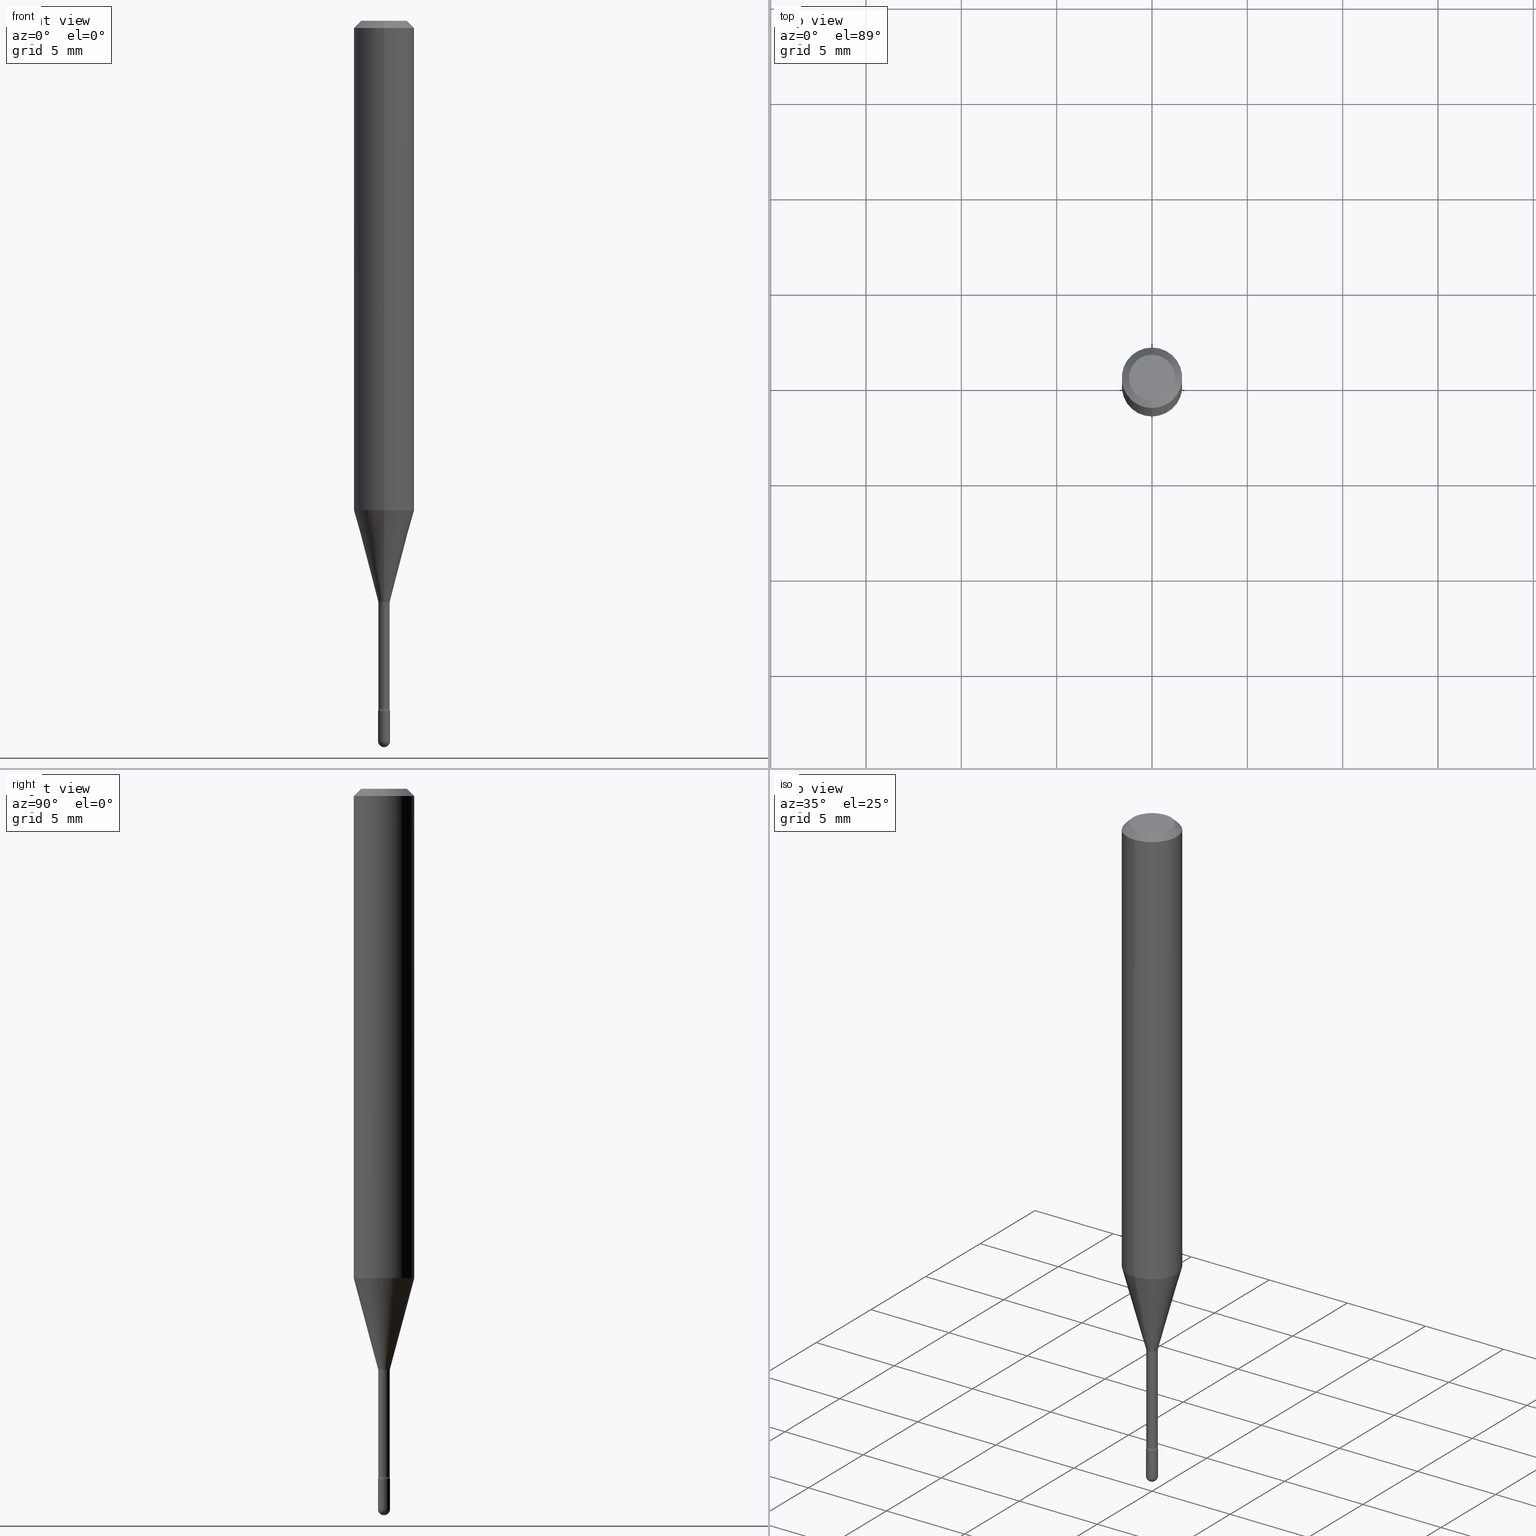
[diagram: canonical four-view strip — front | top / right | iso, engineering-drawing reading convention]
A machine part, canonical four-view strip (front | top / right | iso — engineering-drawing reading convention). The complete STEP part file that produces these views, byte-faithful:
ISO-10303-21;
HEADER;
FILE_DESCRIPTION (( 'STEP AP203' ),
    '1' );
FILE_NAME ('09304.STEP',
    '2024-04-09T22:18:19',
    ( '' ),
    ( '' ),
    'SwSTEP 2.0',
    'SolidWorks 2023',
    '' );
FILE_SCHEMA (( 'CONFIG_CONTROL_DESIGN' ));
ENDSEC;

DATA;
#1 = MECHANICAL_CONTEXT ( 'NONE', #393, 'mechanical' ) ;
#2 =( LENGTH_UNIT ( ) NAMED_UNIT ( * ) SI_UNIT ( $, .METRE. ) );
#3 = CONICAL_SURFACE ( 'NONE', #303, 0.06250000000000000000, 0.7853981633974483900 ) ;
#4 = CARTESIAN_POINT ( 'NONE',  ( 2.939391848563758953E-29, -4.196672540189851950E-15, -1.201974787463810923 ) ) ;
#5 = TOROIDAL_SURFACE ( 'NONE', #379, 0.02674999999999999947, 0.01499999999999998904 ) ;
#6 = CARTESIAN_POINT ( 'NONE',  ( 3.473339087963991292E-29, -4.959007687372092628E-15, -1.420316251501201332 ) ) ;
#7 = COORDINATED_UNIVERSAL_TIME_OFFSET ( 5, 0, .BEHIND. ) ;
#8 = CARTESIAN_POINT ( 'NONE',  ( -8.561889171223086706E-17, -0.01226111260566816255, -1.198092501787273223 ) ) ;
#9 = EDGE_LOOP ( 'NONE', ( #147, #99, #421, #566 ) ) ;
#10 = LINE ( 'NONE', #331, #33 ) ;
#11 = EDGE_CURVE ( 'NONE', #504, #551, #356, .T. ) ;
#12 = DIRECTION ( 'NONE',  ( 1.839019923739597949E-15, 0.2588190451025246253, 0.9659258262890670910 ) ) ;
#13 = DATE_AND_TIME ( #312, #174 ) ;
#14 = AXIS2_PLACEMENT_3D ( 'NONE', #158, #167, #76 ) ;
#15 = APPROVAL_DATE_TIME ( #462, #544 ) ;
#16 = DIRECTION ( 'NONE',  ( -2.445344965363112151E-29, 3.491658685948866610E-15, 1.000000000000000000 ) ) ;
#17 = VERTEX_POINT ( 'NONE', #369 ) ;
#18 = EDGE_LOOP ( 'NONE', ( #511, #547 ) ) ;
#19 = CC_DESIGN_PERSON_AND_ORGANIZATION_ASSIGNMENT ( #345, #270, ( #185 ) ) ;
#20 = DIRECTION ( 'NONE',  ( 1.000000000000000000, -7.105427357601001070E-15, 4.926317680417736318E-29 ) ) ;
#21 = CARTESIAN_POINT ( 'NONE',  ( 1.900701818158617031E-16, 0.02674999999999506939, -1.420316251501201332 ) ) ;
#22 = CARTESIAN_POINT ( 'NONE',  ( 4.440892098500871695E-16, 0.06249999999999647504, -1.010598421515880085 ) ) ;
#23 = ORIENTED_EDGE ( 'NONE', *, *, #415, .F. ) ;
#24 = CIRCLE ( 'NONE', #107, 0.04749999999999999362 ) ;
#25 = CONICAL_SURFACE ( 'NONE', #490, 0.01226111260566397840, 0.2617993877991499629 ) ;
#26 = ORIENTED_EDGE ( 'NONE', *, *, #438, .T. ) ;
#27 = DIRECTION ( 'NONE',  ( -6.982962677686265922E-15, -1.000000000000000000, 0.000000000000000000 ) ) ;
#28 = DIRECTION ( 'NONE',  ( -1.000000000000000000, 6.982962677686265922E-15, -4.883557194083112901E-29 ) ) ;
#29 = APPROVAL ( #458, 'UNSPECIFIED' ) ;
#30 = VERTEX_POINT ( 'NONE', #290 ) ;
#31 = CARTESIAN_POINT ( 'NONE',  ( -1.169113584055446105E-44, 1.669184350826100908E-30, 4.780733988912460139E-16 ) ) ;
#32 = DIRECTION ( 'NONE',  ( -6.982962677686265922E-15, -1.000000000000000000, 3.491658685948865033E-15 ) ) ;
#33 = VECTOR ( 'NONE', #276, 39.37007874015748143 ) ;
#34 = CARTESIAN_POINT ( 'NONE',  ( 3.637634849200390463E-29, -5.193578491529179010E-15, -1.487499999999999822 ) ) ;
#35 = CIRCLE ( 'NONE', #450, 0.01250000000000000069 ) ;
#36 = EDGE_CURVE ( 'NONE', #297, #51, #426, .T. ) ;
#37 = DIRECTION ( 'NONE',  ( -2.445468806185136597E-29, 3.491481338843145583E-15, 1.000000000000000000 ) ) ;
#38 = CARTESIAN_POINT ( 'NONE',  ( 3.668017448044687809E-31, -5.237488028923329079E-17, -0.01500000000000008271 ) ) ;
#39 = DIRECTION ( 'NONE',  ( -2.445344965363111590E-29, 3.491658685948866610E-15, 1.000000000000000000 ) ) ;
#40 = EDGE_CURVE ( 'NONE', #488, #302, #493, .T. ) ;
#41 = AXIS2_PLACEMENT_3D ( 'NONE', #113, #323, #53 ) ;
#42 = AXIS2_PLACEMENT_3D ( 'NONE', #170, #440, #344 ) ;
#43 = CARTESIAN_POINT ( 'NONE',  ( -1.169113584055446105E-44, 1.669184350826100908E-30, 4.780733988912460139E-16 ) ) ;
#44 = DIRECTION ( 'NONE',  ( -6.982962677686265922E-15, -1.000000000000000000, 3.491658685948866610E-15 ) ) ;
#45 = CIRCLE ( 'NONE', #143, 0.06250000000000000000 ) ;
#46 = ADVANCED_FACE ( 'NONE', ( #539 ), #67, .T. ) ;
#47 = AXIS2_PLACEMENT_3D ( 'NONE', #274, #39, #44 ) ;
#48 = CARTESIAN_POINT ( 'NONE',  ( -0.01250000000000000243, -4.995651857720318490E-15, -1.487499999999999822 ) ) ;
#49 = DIRECTION ( 'NONE',  ( -6.982962677686265922E-15, -1.000000000000000000, 4.370956789862821150E-15 ) ) ;
#50 = DIRECTION ( 'NONE',  ( -2.445344965363112151E-29, 3.491658685948866610E-15, 1.000000000000000000 ) ) ;
#51 = VERTEX_POINT ( 'NONE', #429 ) ;
#52 = PERSON_AND_ORGANIZATION_ROLE ( 'creator' ) ;
#53 = DIRECTION ( 'NONE',  ( 6.982962677686265922E-15, 1.000000000000000000, -3.491658685948866610E-15 ) ) ;
#54 = EDGE_CURVE ( 'NONE', #214, #325, #253, .T. ) ;
#55 = CARTESIAN_POINT ( 'NONE',  ( 2.471261762057765051E-29, -3.528664756492135889E-15, -1.010598421515879863 ) ) ;
#56 = DIRECTION ( 'NONE',  ( -2.445344965363112151E-29, 3.491658685948866610E-15, 1.000000000000000000 ) ) ;
#57 = AXIS2_PLACEMENT_3D ( 'NONE', #102, #286, #374 ) ;
#58 = AXIS2_PLACEMENT_3D ( 'NONE', #21, #293, #437 ) ;
#59 = CARTESIAN_POINT ( 'NONE',  ( 3.637634849200391024E-29, -5.193578491529179010E-15, -1.487500000000000266 ) ) ;
#60 = ORIENTED_EDGE ( 'NONE', *, *, #435, .F. ) ;
#61 = ORIENTED_EDGE ( 'NONE', *, *, #390, .T. ) ;
#62 = FACE_OUTER_BOUND ( 'NONE', #208, .T. ) ;
#63 = DIRECTION ( 'NONE',  ( -2.445468806185136877E-29, 3.491481338843145188E-15, 1.000000000000000000 ) ) ;
#64 = EDGE_CURVE ( 'NONE', #74, #214, #231, .T. ) ;
#65 = CARTESIAN_POINT ( 'NONE',  ( 2.929749467284803719E-29, -4.183330090435740004E-15, -1.198092501787273223 ) ) ;
#66 = ORIENTED_EDGE ( 'NONE', *, *, #359, .T. ) ;
#67 = CYLINDRICAL_SURFACE ( 'NONE', #448, 0.06250000000000000000 ) ;
#68 = EDGE_CURVE ( 'NONE', #74, #551, #420, .T. ) ;
#69 = CARTESIAN_POINT ( 'NONE',  ( -1.867942516280730992E-16, -0.02675000000000498854, -1.420316251501201332 ) ) ;
#70 = ORIENTED_EDGE ( 'NONE', *, *, #68, .T. ) ;
#71 = AXIS2_PLACEMENT_3D ( 'NONE', #352, #478, #73 ) ;
#72 = ORIENTED_EDGE ( 'NONE', *, *, #11, .F. ) ;
#73 = DIRECTION ( 'NONE',  ( -6.982962677686265922E-15, -1.000000000000000000, 0.000000000000000000 ) ) ;
#74 = VERTEX_POINT ( 'NONE', #166 ) ;
#75 = DIRECTION ( 'NONE',  ( 2.445344965363112151E-29, -3.491658685948866610E-15, -1.000000000000000000 ) ) ;
#76 = DIRECTION ( 'NONE',  ( -6.982962677686265922E-15, -1.000000000000000000, 0.000000000000000000 ) ) ;
#77 = PLANE ( 'NONE',  #346 ) ;
#78 = AXIS2_PLACEMENT_3D ( 'NONE', #151, #245, #422 ) ;
#79 = LOCAL_TIME ( 18, 18, 19.00000000000000000, #495 ) ;
#80 = CC_DESIGN_PERSON_AND_ORGANIZATION_ASSIGNMENT ( #322, #112, ( #203 ) ) ;
#81 = CARTESIAN_POINT ( 'NONE',  ( -4.364351673553912750E-16, -0.06250000000000005551, -0.01499999999999986587 ) ) ;
#82 = LINE ( 'NONE', #304, #378 ) ;
#83 = DIRECTION ( 'NONE',  ( 1.000000000000000000, -6.982962677686265922E-15, 4.876176775795935793E-29 ) ) ;
#84 = CARTESIAN_POINT ( 'NONE',  ( 0.01250000000000000243, -8.728703347107835853E-17, 6.095220969744921493E-31 ) ) ;
#85 = PLANE ( 'NONE',  #47 ) ;
#86 = DIRECTION ( 'NONE',  ( 1.000000000000000000, -6.982962677686292743E-15, 0.000000000000000000 ) ) ;
#87 = ORIENTED_EDGE ( 'NONE', *, *, #560, .T. ) ;
#88 = AXIS2_PLACEMENT_3D ( 'NONE', #461, #470, #248 ) ;
#89 = AXIS2_PLACEMENT_3D ( 'NONE', #59, #363, #240 ) ;
#90 = VECTOR ( 'NONE', #227, 39.37007874015748143 ) ;
#91 = ORIENTED_EDGE ( 'NONE', *, *, #362, .F. ) ;
#92 = CARTESIAN_POINT ( 'NONE',  ( 2.929749467284803719E-29, -4.183330090435740004E-15, -1.198092501787273223 ) ) ;
#93 = EDGE_CURVE ( 'NONE', #257, #424, #24, .T. ) ;
#94 =( CONVERSION_BASED_UNIT ( 'INCH', #492 ) LENGTH_UNIT ( ) NAMED_UNIT ( #514 ) );
#95 = CIRCLE ( 'NONE', #57, 0.01250000000000000069 ) ;
#96 = DIRECTION ( 'NONE',  ( -2.445468806185136597E-29, 3.491481338843145583E-15, 1.000000000000000000 ) ) ;
#97 = SHAPE_DEFINITION_REPRESENTATION ( #549, #558 ) ;
#98 = DIRECTION ( 'NONE',  ( -2.445344965363112151E-29, 3.491658685948866610E-15, 1.000000000000000000 ) ) ;
#99 = ORIENTED_EDGE ( 'NONE', *, *, #124, .F. ) ;
#100 = CARTESIAN_POINT ( 'NONE',  ( 4.364351673553919652E-16, 0.06249999999999995143, -0.01500000000000030129 ) ) ;
#101 = UNCERTAINTY_MEASURE_WITH_UNIT (LENGTH_MEASURE( 1.000000000000000082E-05 ), #94, 'distance_accuracy_value', 'NONE');
#102 = CARTESIAN_POINT ( 'NONE',  ( 3.484793048813820547E-29, -4.975360907851483175E-15, -1.425000000000000266 ) ) ;
#103 = CARTESIAN_POINT ( 'NONE',  ( -8.204981146277892841E-17, -0.01175000000000496307, -1.420316251501201332 ) ) ;
#104 = VERTEX_POINT ( 'NONE', #499 ) ;
#105 = DIRECTION ( 'NONE',  ( 1.000000000000000000, -6.982962677686265922E-15, 4.883557194083112340E-29 ) ) ;
#106 = APPROVAL_ROLE ( '' ) ;
#107 = AXIS2_PLACEMENT_3D ( 'NONE', #328, #56, #466 ) ;
#108 = AXIS2_PLACEMENT_3D ( 'NONE', #234, #404, #486 ) ;
#109 = ORIENTED_EDGE ( 'NONE', *, *, #359, .F. ) ;
#110 = EDGE_CURVE ( 'NONE', #51, #30, #95, .T. ) ;
#111 = DIRECTION ( 'NONE',  ( -6.982962677686265922E-15, -1.000000000000000000, 3.491658685948867005E-15 ) ) ;
#112 = PERSON_AND_ORGANIZATION_ROLE ( 'classification_officer' ) ;
#113 = CARTESIAN_POINT ( 'NONE',  ( 3.316907271900976096E-16, 0.04749999999999999362, 3.181360782104003877E-17 ) ) ;
#114 = LINE ( 'NONE', #8, #365 ) ;
#115 = VERTEX_POINT ( 'NONE', #503 ) ;
#116 = ORIENTED_EDGE ( 'NONE', *, *, #180, .T. ) ;
#117 = DIRECTION ( 'NONE',  ( -2.445344965363112151E-29, 3.491658685948866610E-15, 1.000000000000000000 ) ) ;
#118 = ORIENTED_EDGE ( 'NONE', *, *, #93, .F. ) ;
#119 = ORIENTED_EDGE ( 'NONE', *, *, #224, .T. ) ;
#120 = ORIENTED_EDGE ( 'NONE', *, *, #40, .F. ) ;
#121 = ADVANCED_FACE ( 'NONE', ( #155 ), #557, .F. ) ;
#122 = AXIS2_PLACEMENT_3D ( 'NONE', #368, #117, #206 ) ;
#123 = AXIS2_PLACEMENT_3D ( 'NONE', #34, #519, #387 ) ;
#124 = EDGE_CURVE ( 'NONE', #311, #104, #135, .T. ) ;
#125 = DIRECTION ( 'NONE',  ( -1.000000000000000000, 6.982962677686266711E-15, -4.883557194083112901E-29 ) ) ;
#126 = ORIENTED_EDGE ( 'NONE', *, *, #54, .T. ) ;
#127 = AXIS2_PLACEMENT_3D ( 'NONE', #237, #105, #209 ) ;
#128 = ADVANCED_FACE ( 'NONE', ( #473 ), #202, .T. ) ;
#129 =( NAMED_UNIT ( * ) PLANE_ANGLE_UNIT ( ) SI_UNIT ( $, .RADIAN. ) );
#130 = DIRECTION ( 'NONE',  ( 6.982962677686265922E-15, 1.000000000000000000, -3.483106191921935554E-15 ) ) ;
#131 = CC_DESIGN_PERSON_AND_ORGANIZATION_ASSIGNMENT ( #238, #144, ( #479 ) ) ;
#132 = COORDINATED_UNIVERSAL_TIME_OFFSET ( 5, 0, .BEHIND. ) ;
#133 = CARTESIAN_POINT ( 'NONE',  ( -8.728703347104359935E-17, -0.01250000000000499323, -1.425000000000000266 ) ) ;
#134 = ORIENTED_EDGE ( 'NONE', *, *, #142, .F. ) ;
#135 = CIRCLE ( 'NONE', #157, 0.01175000000000000350 ) ;
#136 = AXIS2_PLACEMENT_3D ( 'NONE', #172, #154, #413 ) ;
#137 = LINE ( 'NONE', #351, #90 ) ;
#138 = ADVANCED_FACE ( 'NONE', ( #62 ), #515, .T. ) ;
#139 = DIRECTION ( 'NONE',  ( -6.982962677686265922E-15, -1.000000000000000000, 0.000000000000000000 ) ) ;
#140 = ORIENTED_EDGE ( 'NONE', *, *, #193, .T. ) ;
#141 = DIRECTION ( 'NONE',  ( 1.000000000000000000, -6.982962677686267499E-15, 4.876176775795936353E-29 ) ) ;
#142 = EDGE_CURVE ( 'NONE', #164, #30, #264, .T. ) ;
#143 = AXIS2_PLACEMENT_3D ( 'NONE', #250, #388, #561 ) ;
#144 = PERSON_AND_ORGANIZATION_ROLE ( 'creator' ) ;
#145 = PRODUCT_DEFINITION_FORMATION_WITH_SPECIFIED_SOURCE ( 'ANY', '', #185, .NOT_KNOWN. ) ;
#146 = FACE_OUTER_BOUND ( 'NONE', #188, .T. ) ;
#147 = ORIENTED_EDGE ( 'NONE', *, *, #392, .F. ) ;
#148 = CARTESIAN_POINT ( 'NONE',  ( 2.929749467284803719E-29, -4.183330090435740004E-15, -1.198092501787273223 ) ) ;
#149 = EDGE_CURVE ( 'NONE', #424, #257, #212, .T. ) ;
#150 = EDGE_LOOP ( 'NONE', ( #530, #118, #518, #552 ) ) ;
#151 = CARTESIAN_POINT ( 'NONE',  ( -1.867942516280782268E-16, -0.02675000000000419403, -1.201974787463810701 ) ) ;
#152 = EDGE_LOOP ( 'NONE', ( #336, #161 ) ) ;
#153 = DIRECTION ( 'NONE',  ( -6.982962677686266711E-15, -1.000000000000000000, 3.491658685948866610E-15 ) ) ;
#154 = DIRECTION ( 'NONE',  ( -2.445468806185136597E-29, 3.491481338843145583E-15, 1.000000000000000000 ) ) ;
#155 = FACE_OUTER_BOUND ( 'NONE', #474, .T. ) ;
#156 = PERSON_AND_ORGANIZATION_ROLE ( 'design_supplier' ) ;
#157 = AXIS2_PLACEMENT_3D ( 'NONE', #295, #298, #163 ) ;
#158 = CARTESIAN_POINT ( 'NONE',  ( 3.473163194831870377E-29, -4.959259576348504986E-15, -1.420316251501201332 ) ) ;
#159 = AXIS2_PLACEMENT_3D ( 'NONE', #553, #168, #141 ) ;
#160 = EDGE_LOOP ( 'NONE', ( #66, #497, #401, #134, #26 ) ) ;
#161 = ORIENTED_EDGE ( 'NONE', *, *, #162, .F. ) ;
#162 = EDGE_CURVE ( 'NONE', #373, #494, #526, .T. ) ;
#163 = DIRECTION ( 'NONE',  ( -6.982962677686265922E-15, -1.000000000000000000, 0.000000000000000000 ) ) ;
#164 = VERTEX_POINT ( 'NONE', #444 ) ;
#165 = EDGE_CURVE ( 'NONE', #17, #425, #45, .T. ) ;
#166 = CARTESIAN_POINT ( 'NONE',  ( -8.561889171223086706E-17, -0.01226111260566816255, -1.198092501787273223 ) ) ;
#167 = DIRECTION ( 'NONE',  ( -2.445344965363112151E-29, 3.491658685948866610E-15, 1.000000000000000000 ) ) ;
#168 = DIRECTION ( 'NONE',  ( -2.445468806185136597E-29, 3.491481338843145583E-15, 1.000000000000000000 ) ) ;
#169 = ADVANCED_FACE ( 'NONE', ( #555 ), #410, .F. ) ;
#170 = CARTESIAN_POINT ( 'NONE',  ( 3.668017448044687809E-31, -5.237488028923329079E-17, -0.01500000000000008271 ) ) ;
#171 = VECTOR ( 'NONE', #12, 39.37007874015748854 ) ;
#172 = CARTESIAN_POINT ( 'NONE',  ( 3.484793048813820547E-29, -4.975360907851483175E-15, -1.425000000000000266 ) ) ;
#173 = AXIS2_PLACEMENT_3D ( 'NONE', #263, #37, #181 ) ;
#174 = LOCAL_TIME ( 18, 18, 19.00000000000000000, #132 ) ;
#175 = MANIFOLD_SOLID_BREP ( 'Body-Move/Copy2[2]', #182 ) ;
#176 = CC_DESIGN_DATE_AND_TIME_ASSIGNMENT ( #296, #236, ( #203 ) ) ;
#177 = FACE_OUTER_BOUND ( 'NONE', #150, .T. ) ;
#178 = FACE_OUTER_BOUND ( 'NONE', #432, .T. ) ;
#179 = CYLINDRICAL_SURFACE ( 'NONE', #173, 0.01250000000000000243 ) ;
#180 = EDGE_CURVE ( 'NONE', #297, #324, #289, .T. ) ;
#181 = DIRECTION ( 'NONE',  ( 1.000000000000000000, -6.982962677686267499E-15, 4.876176775795936353E-29 ) ) ;
#182 = CLOSED_SHELL ( 'NONE', ( #513, #350, #121, #128, #480, #367, #235, #46, #271, #288, #459, #219, #395, #169 ) ) ;
#183 = APPROVAL ( #265, 'UNSPECIFIED' ) ;
#184 = DIRECTION ( 'NONE',  ( -2.445344965363112151E-29, 3.491658685948866610E-15, 1.000000000000000000 ) ) ;
#185 = PRODUCT ( '09304', '09304', '', ( #1 ) ) ;
#186 = DIRECTION ( 'NONE',  ( -6.982962677686265133E-15, -1.000000000000000000, 3.491658685948866610E-15 ) ) ;
#187 = CARTESIAN_POINT ( 'NONE',  ( -8.204981146278426554E-17, -0.01175000000000419979, -1.201974787463810701 ) ) ;
#188 = EDGE_LOOP ( 'NONE', ( #471, #287, #535, #338 ) ) ;
#189 = ORIENTED_EDGE ( 'NONE', *, *, #11, .T. ) ;
#190 = CIRCLE ( 'NONE', #398, 0.01250000000000000243 ) ;
#191 = LOCAL_TIME ( 18, 18, 19.00000000000000000, #7 ) ;
#192 = DIRECTION ( 'NONE',  ( -6.982962677686266711E-15, -1.000000000000000000, 3.491658685948866610E-15 ) ) ;
#193 = EDGE_CURVE ( 'NONE', #311, #551, #10, .T. ) ;
#194 = DIRECTION ( 'NONE',  ( -2.445344965363112151E-29, 3.491658685948866610E-15, 1.000000000000000000 ) ) ;
#195 = PERSON_AND_ORGANIZATION ( #284, #456 ) ;
#196 = EDGE_CURVE ( 'NONE', #325, #115, #455, .T. ) ;
#197 = DIRECTION ( 'NONE',  ( -2.445344965363112151E-29, 3.491658685948866610E-15, 1.000000000000000000 ) ) ;
#198 = PERSON_AND_ORGANIZATION ( #284, #456 ) ;
#199 = CARTESIAN_POINT ( 'NONE',  ( 8.728703347111462148E-17, 0.01249999999999479305, -1.487499999999999822 ) ) ;
#200 = ORIENTED_EDGE ( 'NONE', *, *, #149, .F. ) ;
#201 = DIRECTION ( 'NONE',  ( 1.000000000000000000, -6.982962677686292743E-15, 0.000000000000000000 ) ) ;
#202 = CONICAL_SURFACE ( 'NONE', #389, 0.06250000000000000000, 0.7853981633974483900 ) ;
#203 = SECURITY_CLASSIFICATION ( '', '', #460 ) ;
#204 = DIRECTION ( 'NONE',  ( 1.000000000000000000, -6.982962677686292743E-15, 0.000000000000000000 ) ) ;
#205 = CARTESIAN_POINT ( 'NONE',  ( 3.637634849200390463E-29, -5.193578491529179010E-15, -1.487499999999999822 ) ) ;
#206 = DIRECTION ( 'NONE',  ( -6.982962677686265922E-15, -1.000000000000000000, 0.000000000000000000 ) ) ;
#207 = COORDINATED_UNIVERSAL_TIME_OFFSET ( 5, 0, .BEHIND. ) ;
#208 = EDGE_LOOP ( 'NONE', ( #120, #541, #330, #109 ) ) ;
#209 = DIRECTION ( 'NONE',  ( 6.982962677686265922E-15, 1.000000000000000000, 0.000000000000000000 ) ) ;
#210 = EDGE_CURVE ( 'NONE', #115, #325, #254, .T. ) ;
#211 = ORIENTED_EDGE ( 'NONE', *, *, #210, .T. ) ;
#212 = CIRCLE ( 'NONE', #217, 0.04749999999999999362 ) ;
#213 = CC_DESIGN_APPROVAL ( #29, ( #145 ) ) ;
#214 = VERTEX_POINT ( 'NONE', #534 ) ;
#215 = EDGE_LOOP ( 'NONE', ( #294, #510, #258, #502 ) ) ;
#216 = ORIENTED_EDGE ( 'NONE', *, *, #435, .T. ) ;
#217 = AXIS2_PLACEMENT_3D ( 'NONE', #394, #563, #449 ) ;
#218 = AXIS2_PLACEMENT_3D ( 'NONE', #340, #443, #354 ) ;
#219 = ADVANCED_FACE ( 'NONE', ( #537 ), #564, .F. ) ;
#220 = DIRECTION ( 'NONE',  ( -2.445468806185136877E-29, 3.491481338843145188E-15, 1.000000000000000000 ) ) ;
#221 = SPHERICAL_SURFACE ( 'NONE', #261, 0.01249999999999996947 ) ;
#222 = FACE_OUTER_BOUND ( 'NONE', #256, .T. ) ;
#223 = AXIS2_PLACEMENT_3D ( 'NONE', #69, #28, #339 ) ;
#224 = EDGE_CURVE ( 'NONE', #325, #17, #82, .T. ) ;
#225 = AXIS2_PLACEMENT_3D ( 'NONE', #540, #98, #239 ) ;
#226 = ORIENTED_EDGE ( 'NONE', *, *, #93, .T. ) ;
#227 = DIRECTION ( 'NONE',  ( -4.851104656540964275E-15, -0.7071067811865500152, -0.7071067811865450192 ) ) ;
#228 = EDGE_LOOP ( 'NONE', ( #545, #251, #189, #402 ) ) ;
#229 = ADVANCED_FACE ( 'NONE', ( #347 ), #77, .T. ) ;
#230 = DIRECTION ( 'NONE',  ( -2.445344965363112151E-29, 3.491658685948866610E-15, 1.000000000000000000 ) ) ;
#231 = CIRCLE ( 'NONE', #546, 0.01226111260566397840 ) ;
#232 = VECTOR ( 'NONE', #194, 39.37007874015748143 ) ;
#233 = ORIENTED_EDGE ( 'NONE', *, *, #299, .F. ) ;
#234 = CARTESIAN_POINT ( 'NONE',  ( 0.000000000000000000, 0.000000000000000000, 0.000000000000000000 ) ) ;
#235 = ADVANCED_FACE ( 'NONE', ( #266 ), #277, .T. ) ;
#236 = DATE_TIME_ROLE ( 'classification_date' ) ;
#237 = CARTESIAN_POINT ( 'NONE',  ( 3.637634849200391024E-29, -5.193578491529179010E-15, -1.487500000000000266 ) ) ;
#238 = PERSON_AND_ORGANIZATION ( #284, #456 ) ;
#239 = DIRECTION ( 'NONE',  ( -6.982962677686265922E-15, -1.000000000000000000, 3.491658685948865033E-15 ) ) ;
#240 = DIRECTION ( 'NONE',  ( -7.105427357601001070E-15, -1.000000000000000000, 0.000000000000000000 ) ) ;
#241 = AXIS2_PLACEMENT_3D ( 'NONE', #6, #197, #186 ) ;
#242 = CARTESIAN_POINT ( 'NONE',  ( 8.712044494294062318E-17, 0.01226111260565979598, -1.198092501787273223 ) ) ;
#243 = VECTOR ( 'NONE', #16, 39.37007874015748143 ) ;
#244 = ORIENTED_EDGE ( 'NONE', *, *, #249, .T. ) ;
#245 = DIRECTION ( 'NONE',  ( -1.000000000000000000, 6.982962677686265922E-15, -4.883557194083112901E-29 ) ) ;
#246 = CARTESIAN_POINT ( 'NONE',  ( 1.900701818158561564E-16, 0.02674999999999580144, -1.201974787463811145 ) ) ;
#247 = ORIENTED_EDGE ( 'NONE', *, *, #36, .F. ) ;
#248 = DIRECTION ( 'NONE',  ( -6.982962677686265133E-15, -1.000000000000000000, 3.491658685948866610E-15 ) ) ;
#249 = EDGE_CURVE ( 'NONE', #324, #164, #190, .T. ) ;
#250 = CARTESIAN_POINT ( 'NONE',  ( 3.668017448044687809E-31, -5.237488028923329079E-17, -0.01500000000000008271 ) ) ;
#251 = ORIENTED_EDGE ( 'NONE', *, *, #279, .T. ) ;
#252 = ORIENTED_EDGE ( 'NONE', *, *, #454, .F. ) ;
#253 = LINE ( 'NONE', #242, #171 ) ;
#254 = CIRCLE ( 'NONE', #321, 0.06250000000000000000 ) ;
#255 = AXIS2_PLACEMENT_3D ( 'NONE', #92, #230, #139 ) ;
#256 = EDGE_LOOP ( 'NONE', ( #211, #119, #60, #463 ) ) ;
#257 = VERTEX_POINT ( 'NONE', #528 ) ;
#258 = ORIENTED_EDGE ( 'NONE', *, *, #299, .T. ) ;
#259 = CARTESIAN_POINT ( 'NONE',  ( 2.939391848563758953E-29, -4.196672540189851950E-15, -1.201974787463810923 ) ) ;
#260 = ORIENTED_EDGE ( 'NONE', *, *, #142, .T. ) ;
#261 = AXIS2_PLACEMENT_3D ( 'NONE', #520, #125, #380 ) ;
#262 = EDGE_CURVE ( 'NONE', #104, #311, #476, .T. ) ;
#263 = CARTESIAN_POINT ( 'NONE',  ( 0.000000000000000000, 0.000000000000000000, 0.000000000000000000 ) ) ;
#264 = LINE ( 'NONE', #84, #489 ) ;
#265 = APPROVAL_STATUS ( 'not_yet_approved' ) ;
#266 = FACE_OUTER_BOUND ( 'NONE', #215, .T. ) ;
#267 = EDGE_CURVE ( 'NONE', #311, #494, #505, .T. ) ;
#268 = DIRECTION ( 'NONE',  ( -2.445344965363112151E-29, 3.491658685948866610E-15, 1.000000000000000000 ) ) ;
#269 = ORIENTED_EDGE ( 'NONE', *, *, #267, .F. ) ;
#270 = PERSON_AND_ORGANIZATION_ROLE ( 'design_owner' ) ;
#271 = ADVANCED_FACE ( 'NONE', ( #177 ), #3, .T. ) ;
#272 = VECTOR ( 'NONE', #63, 39.37007874015748143 ) ;
#273 = CC_DESIGN_SECURITY_CLASSIFICATION ( #203, ( #145 ) ) ;
#274 = CARTESIAN_POINT ( 'NONE',  ( 8.728703347111317935E-17, 0.01249999999999502551, -1.425000000000000266 ) ) ;
#275 = CARTESIAN_POINT ( 'NONE',  ( 3.637634849200390463E-29, -5.193578491529179010E-15, -1.487499999999999822 ) ) ;
#276 = DIRECTION ( 'NONE',  ( -2.445344965363112151E-29, 3.491658685948866610E-15, 1.000000000000000000 ) ) ;
#277 = CONICAL_SURFACE ( 'NONE', #71, 0.01226111260566397840, 0.2617993877991499629 ) ;
#278 = LOCAL_TIME ( 18, 18, 19.00000000000000000, #334 ) ;
#279 = EDGE_CURVE ( 'NONE', #214, #504, #332, .T. ) ;
#280 = DIRECTION ( 'NONE',  ( -1.807323732225328167E-15, -0.2588190451025179084, 0.9659258262890690894 ) ) ;
#281 = DIRECTION ( 'NONE',  ( -6.982962677686265922E-15, -1.000000000000000000, 4.370956789862821150E-15 ) ) ;
#282 = PERSON_AND_ORGANIZATION ( #284, #456 ) ;
#283 = ORIENTED_EDGE ( 'NONE', *, *, #224, .F. ) ;
#284 = PERSON ( 'UNSPECIFIED', 'UNSPECIFIED', 'UNSPECIFIED', ('UNSPECIFIED'), ('UNSPECIFIED'), ('UNSPECIFIED') ) ;
#285 = CARTESIAN_POINT ( 'NONE',  ( 2.471261762057765051E-29, -3.528664756492135889E-15, -1.010598421515879863 ) ) ;
#286 = DIRECTION ( 'NONE',  ( -2.445468806185136597E-29, 3.491481338843145583E-15, 1.000000000000000000 ) ) ;
#287 = ORIENTED_EDGE ( 'NONE', *, *, #40, .T. ) ;
#288 = ADVANCED_FACE ( 'NONE', ( #509 ), #430, .F. ) ;
#289 = CIRCLE ( 'NONE', #516, 0.01250000000000000243 ) ;
#290 = CARTESIAN_POINT ( 'NONE',  ( 0.01250000000000000069, -5.062647941322562298E-15, -1.425000000000000266 ) ) ;
#291 = CIRCLE ( 'NONE', #255, 0.01226111260566397840 ) ;
#292 = DATE_AND_TIME ( #361, #191 ) ;
#293 = DIRECTION ( 'NONE',  ( 1.000000000000000000, -7.105427357601001070E-15, 4.926317680417736318E-29 ) ) ;
#294 = ORIENTED_EDGE ( 'NONE', *, *, #54, .F. ) ;
#295 = CARTESIAN_POINT ( 'NONE',  ( 3.473163194831870377E-29, -4.959259576348504986E-15, -1.420316251501201332 ) ) ;
#296 = DATE_AND_TIME ( #327, #278 ) ;
#297 = VERTEX_POINT ( 'NONE', #48 ) ;
#298 = DIRECTION ( 'NONE',  ( -2.445344965363112151E-29, 3.491658685948866610E-15, 1.000000000000000000 ) ) ;
#299 = EDGE_CURVE ( 'NONE', #74, #115, #114, .T. ) ;
#300 = ORIENTED_EDGE ( 'NONE', *, *, #149, .T. ) ;
#301 = EDGE_LOOP ( 'NONE', ( #536, #126, #428, #233 ) ) ;
#302 = VERTEX_POINT ( 'NONE', #199 ) ;
#303 = AXIS2_PLACEMENT_3D ( 'NONE', #427, #467, #343 ) ;
#304 = CARTESIAN_POINT ( 'NONE',  ( 4.440892098500625669E-16, 0.06250000000000000000, 2.598447310194419247E-16 ) ) ;
#305 = FACE_OUTER_BOUND ( 'NONE', #317, .T. ) ;
#306 = CYLINDRICAL_SURFACE ( 'NONE', #400, 0.01175000000000000350 ) ;
#307 = EDGE_CURVE ( 'NONE', #488, #324, #341, .T. ) ;
#308 = AXIS2_PLACEMENT_3D ( 'NONE', #522, #268, #436 ) ;
#309 = CIRCLE ( 'NONE', #123, 0.01250000000000000243 ) ;
#310 = DIRECTION ( 'NONE',  ( -6.982962677686265133E-15, -1.000000000000000000, 0.000000000000000000 ) ) ;
#311 = VERTEX_POINT ( 'NONE', #103 ) ;
#312 = CALENDAR_DATE ( 2024, 9, 4 ) ;
#313 = ORIENTED_EDGE ( 'NONE', *, *, #165, .F. ) ;
#314 = FACE_OUTER_BOUND ( 'NONE', #228, .T. ) ;
#315 = ORIENTED_EDGE ( 'NONE', *, *, #262, .F. ) ;
#316 = EDGE_LOOP ( 'NONE', ( #226, #300 ) ) ;
#317 = EDGE_LOOP ( 'NONE', ( #385, #384, #252, #472 ) ) ;
#318 = APPROVAL_ROLE ( '' ) ;
#319 = CYLINDRICAL_SURFACE ( 'NONE', #225, 0.01175000000000000350 ) ;
#320 = CARTESIAN_POINT ( 'NONE',  ( -3.773273898774340269E-16, -0.04749999999999999362, 8.311517949854758664E-17 ) ) ;
#321 = AXIS2_PLACEMENT_3D ( 'NONE', #55, #364, #281 ) ;
#322 = PERSON_AND_ORGANIZATION ( #284, #456 ) ;
#323 = DIRECTION ( 'NONE',  ( 2.445344965363111590E-29, -3.491658685948866610E-15, -1.000000000000000000 ) ) ;
#324 = VERTEX_POINT ( 'NONE', #372 ) ;
#325 = VERTEX_POINT ( 'NONE', #22 ) ;
#326 = DIRECTION ( 'NONE',  ( -2.445344965363112151E-29, 3.491658685948866610E-15, 1.000000000000000000 ) ) ;
#327 = CALENDAR_DATE ( 2024, 9, 4 ) ;
#328 = CARTESIAN_POINT ( 'NONE',  ( 2.022652337167119315E-45, -2.889797645135155470E-31, -8.273860808402356306E-17 ) ) ;
#329 = DATE_AND_TIME ( #500, #442 ) ;
#330 = ORIENTED_EDGE ( 'NONE', *, *, #180, .F. ) ;
#331 = CARTESIAN_POINT ( 'NONE',  ( -8.204981146281365061E-17, -0.01175000000000000350, 5.191003884511451965E-16 ) ) ;
#332 = CIRCLE ( 'NONE', #532, 0.01499999999999998557 ) ;
#333 =( GEOMETRIC_REPRESENTATION_CONTEXT ( 3 ) GLOBAL_UNCERTAINTY_ASSIGNED_CONTEXT ( ( #101 ) ) GLOBAL_UNIT_ASSIGNED_CONTEXT ( ( #94, #129, #523 ) ) REPRESENTATION_CONTEXT ( 'NONE', 'WORKASPACE' ) );
#334 = COORDINATED_UNIVERSAL_TIME_OFFSET ( 5, 0, .BEHIND. ) ;
#335 = DIRECTION ( 'NONE',  ( 7.105427357601003436E-15, 1.000000000000000000, 0.000000000000000000 ) ) ;
#336 = ORIENTED_EDGE ( 'NONE', *, *, #524, .F. ) ;
#337 = ORIENTED_EDGE ( 'NONE', *, *, #110, .F. ) ;
#338 = ORIENTED_EDGE ( 'NONE', *, *, #249, .F. ) ;
#339 = DIRECTION ( 'NONE',  ( -6.982962677686265133E-15, -1.000000000000000000, 0.000000000000000000 ) ) ;
#340 = CARTESIAN_POINT ( 'NONE',  ( 2.939242995018026601E-29, -4.196885706939558335E-15, -1.201974787463810701 ) ) ;
#341 = CIRCLE ( 'NONE', #89, 0.01249999999999996947 ) ;
#342 = CIRCLE ( 'NONE', #218, 0.01175000000000000350 ) ;
#343 = DIRECTION ( 'NONE',  ( 6.982962677686265922E-15, 1.000000000000000000, -3.483106191921935554E-15 ) ) ;
#344 = DIRECTION ( 'NONE',  ( -6.982962677686265922E-15, -1.000000000000000000, 3.483106191921935554E-15 ) ) ;
#345 = PERSON_AND_ORGANIZATION ( #284, #456 ) ;
#346 = AXIS2_PLACEMENT_3D ( 'NONE', #485, #399, #83 ) ;
#347 = FACE_OUTER_BOUND ( 'NONE', #18, .T. ) ;
#348 = DIRECTION ( 'NONE',  ( 6.982962677686266711E-15, 1.000000000000000000, 0.000000000000000000 ) ) ;
#349 = APPROVAL_PERSON_ORGANIZATION ( #370, #544, #318 ) ;
#350 = ADVANCED_FACE ( 'NONE', ( #305 ), #319, .T. ) ;
#351 = CARTESIAN_POINT ( 'NONE',  ( -4.287811248607203282E-16, -0.06250000000000005551, -0.01499999999999986587 ) ) ;
#352 = CARTESIAN_POINT ( 'NONE',  ( 2.929749467284803719E-29, -4.183330090435740004E-15, -1.198092501787273223 ) ) ;
#353 = LINE ( 'NONE', #100, #533 ) ;
#354 = DIRECTION ( 'NONE',  ( -6.982962677686265922E-15, -1.000000000000000000, 0.000000000000000000 ) ) ;
#355 = DIRECTION ( 'NONE',  ( -2.445468806185136597E-29, 3.491481338843145583E-15, 1.000000000000000000 ) ) ;
#356 = CIRCLE ( 'NONE', #122, 0.01175000000000000350 ) ;
#357 = APPROVAL_PERSON_ORGANIZATION ( #521, #183, #445 ) ;
#358 = CARTESIAN_POINT ( 'NONE',  ( 3.484616575642435368E-29, -4.975613627477135797E-15, -1.425000000000000266 ) ) ;
#359 = EDGE_CURVE ( 'NONE', #302, #297, #465, .T. ) ;
#360 = CC_DESIGN_PERSON_AND_ORGANIZATION_ASSIGNMENT ( #198, #156, ( #145 ) ) ;
#361 = CALENDAR_DATE ( 2024, 9, 4 ) ;
#362 = EDGE_CURVE ( 'NONE', #104, #504, #453, .T. ) ;
#363 = DIRECTION ( 'NONE',  ( -1.000000000000000000, 7.105427357601001070E-15, -4.926315508542082329E-29 ) ) ;
#364 = DIRECTION ( 'NONE',  ( -2.445344965363112151E-29, 3.491658685948866610E-15, 1.000000000000000000 ) ) ;
#365 = VECTOR ( 'NONE', #280, 39.37007874015748143 ) ;
#366 = AXIS2_PLACEMENT_3D ( 'NONE', #275, #418, #204 ) ;
#367 = ADVANCED_FACE ( 'NONE', ( #543 ), #25, .T. ) ;
#368 = CARTESIAN_POINT ( 'NONE',  ( 2.939242995018026601E-29, -4.196885706939558335E-15, -1.201974787463810701 ) ) ;
#369 = CARTESIAN_POINT ( 'NONE',  ( 4.440892098500874653E-16, 0.06249999999999993755, -0.01500000000000030129 ) ) ;
#370 = PERSON_AND_ORGANIZATION ( #284, #456 ) ;
#371 = CC_DESIGN_DATE_AND_TIME_ASSIGNMENT ( #329, #417, ( #479 ) ) ;
#372 = CARTESIAN_POINT ( 'NONE',  ( -8.881784196997603102E-17, -0.01250000000000517884, -1.487499999999999822 ) ) ;
#373 = VERTEX_POINT ( 'NONE', #512 ) ;
#374 = DIRECTION ( 'NONE',  ( 1.000000000000000000, -6.982962677686294321E-15, 0.000000000000000000 ) ) ;
#375 = ADVANCED_FACE ( 'NONE', ( #477 ), #386, .T. ) ;
#376 = ORIENTED_EDGE ( 'NONE', *, *, #262, .T. ) ;
#377 = ORIENTED_EDGE ( 'NONE', *, *, #454, .T. ) ;
#378 = VECTOR ( 'NONE', #439, 39.37007874015748143 ) ;
#379 = AXIS2_PLACEMENT_3D ( 'NONE', #4, #184, #192 ) ;
#380 = DIRECTION ( 'NONE',  ( 6.982962677686266711E-15, 1.000000000000000000, 0.000000000000000000 ) ) ;
#381 = ORIENTED_EDGE ( 'NONE', *, *, #64, .F. ) ;
#382 = EDGE_LOOP ( 'NONE', ( #247, #116, #244, #260, #337 ) ) ;
#383 = ADVANCED_FACE ( 'NONE', ( #146 ), #221, .T. ) ;
#384 = ORIENTED_EDGE ( 'NONE', *, *, #362, .T. ) ;
#385 = ORIENTED_EDGE ( 'NONE', *, *, #124, .T. ) ;
#386 = CYLINDRICAL_SURFACE ( 'NONE', #159, 0.01250000000000000243 ) ;
#387 = DIRECTION ( 'NONE',  ( 1.000000000000000000, -6.982962677686292743E-15, 0.000000000000000000 ) ) ;
#388 = DIRECTION ( 'NONE',  ( -2.445344965363112151E-29, 3.491658685948866610E-15, 1.000000000000000000 ) ) ;
#389 = AXIS2_PLACEMENT_3D ( 'NONE', #38, #75, #130 ) ;
#390 = EDGE_CURVE ( 'NONE', #115, #425, #550, .T. ) ;
#391 = CIRCLE ( 'NONE', #136, 0.01250000000000000069 ) ;
#392 = EDGE_CURVE ( 'NONE', #104, #373, #483, .T. ) ;
#393 = APPLICATION_CONTEXT ( 'configuration controlled 3d designs of mechanical parts and assemblies' ) ;
#394 = CARTESIAN_POINT ( 'NONE',  ( 2.022652337167119315E-45, -2.889797645135155470E-31, -8.273860808402356306E-17 ) ) ;
#395 = ADVANCED_FACE ( 'NONE', ( #178 ), #306, .T. ) ;
#396 = ORIENTED_EDGE ( 'NONE', *, *, #196, .T. ) ;
#397 = CYLINDRICAL_SURFACE ( 'NONE', #517, 0.06250000000000000000 ) ;
#398 = AXIS2_PLACEMENT_3D ( 'NONE', #405, #355, #86 ) ;
#399 = DIRECTION ( 'NONE',  ( -2.438088387897960049E-29, 3.491481338843145188E-15, 1.000000000000000000 ) ) ;
#400 = AXIS2_PLACEMENT_3D ( 'NONE', #31, #556, #32 ) ;
#401 = ORIENTED_EDGE ( 'NONE', *, *, #451, .F. ) ;
#402 = ORIENTED_EDGE ( 'NONE', *, *, #68, .F. ) ;
#403 = APPLICATION_PROTOCOL_DEFINITION ( 'international standard', 'config_control_design', 1994, #481 ) ;
#404 = DIRECTION ( 'NONE',  ( 0.000000000000000000, 0.000000000000000000, 1.000000000000000000 ) ) ;
#405 = CARTESIAN_POINT ( 'NONE',  ( 3.637634849200390463E-29, -5.193578491529179010E-15, -1.487499999999999822 ) ) ;
#406 = CARTESIAN_POINT ( 'NONE',  ( 8.348877145184653122E-17, 0.01174999999999580547, -1.201974787463810701 ) ) ;
#407 = ADVANCED_FACE ( 'NONE', ( #447 ), #179, .T. ) ;
#408 = DIRECTION ( 'NONE',  ( -6.982962677686265922E-15, -1.000000000000000000, 0.000000000000000000 ) ) ;
#409 = CARTESIAN_POINT ( 'NONE',  ( 8.348877145181178436E-17, 0.01175000000000000350, 4.370464093313468807E-16 ) ) ;
#410 = TOROIDAL_SURFACE ( 'NONE', #441, 0.02674999999999999947, 0.01499999999999998904 ) ;
#411 = CC_DESIGN_APPROVAL ( #544, ( #203 ) ) ;
#412 = DIRECTION ( 'NONE',  ( 4.937700262164548042E-15, 0.7071067811865451302, -0.7071067811865499042 ) ) ;
#413 = DIRECTION ( 'NONE',  ( 1.000000000000000000, -6.982962677686294321E-15, 0.000000000000000000 ) ) ;
#414 = APPROVAL_DATE_TIME ( #13, #183 ) ;
#415 = EDGE_CURVE ( 'NONE', #257, #17, #353, .T. ) ;
#416 = DIRECTION ( 'NONE',  ( -2.445344965363112151E-29, 3.491658685948866610E-15, 1.000000000000000000 ) ) ;
#417 = DATE_TIME_ROLE ( 'creation_date' ) ;
#418 = DIRECTION ( 'NONE',  ( -2.445468806185136597E-29, 3.491481338843145583E-15, 1.000000000000000000 ) ) ;
#419 = ORIENTED_EDGE ( 'NONE', *, *, #392, .T. ) ;
#420 = CIRCLE ( 'NONE', #78, 0.01499999999999999424 ) ;
#421 = ORIENTED_EDGE ( 'NONE', *, *, #267, .T. ) ;
#422 = DIRECTION ( 'NONE',  ( -6.982962677686262766E-15, -1.000000000000000000, 0.000000000000000000 ) ) ;
#423 = APPROVAL_STATUS ( 'not_yet_approved' ) ;
#424 = VERTEX_POINT ( 'NONE', #320 ) ;
#425 = VERTEX_POINT ( 'NONE', #81 ) ;
#426 = LINE ( 'NONE', #542, #272 ) ;
#427 = CARTESIAN_POINT ( 'NONE',  ( 3.668017448044687809E-31, -5.237488028923329079E-17, -0.01500000000000008271 ) ) ;
#428 = ORIENTED_EDGE ( 'NONE', *, *, #210, .F. ) ;
#429 = CARTESIAN_POINT ( 'NONE',  ( -0.01250000000000000069, -4.995651857720318490E-15, -1.425000000000000266 ) ) ;
#430 = PLANE ( 'NONE',  #41 ) ;
#431 = ORIENTED_EDGE ( 'NONE', *, *, #162, .T. ) ;
#432 = EDGE_LOOP ( 'NONE', ( #91, #376, #140, #72 ) ) ;
#433 = AXIS2_PLACEMENT_3D ( 'NONE', #285, #457, #49 ) ;
#434 = APPROVAL_PERSON_ORGANIZATION ( #282, #29, #106 ) ;
#435 = EDGE_CURVE ( 'NONE', #425, #17, #548, .T. ) ;
#436 = DIRECTION ( 'NONE',  ( -6.982962677686265133E-15, -1.000000000000000000, 0.000000000000000000 ) ) ;
#437 = DIRECTION ( 'NONE',  ( 7.105427357601001859E-15, 1.000000000000000000, 0.000000000000000000 ) ) ;
#438 = EDGE_CURVE ( 'NONE', #164, #302, #309, .T. ) ;
#439 = DIRECTION ( 'NONE',  ( -2.445344965363112151E-29, 3.491658685948866610E-15, 1.000000000000000000 ) ) ;
#440 = DIRECTION ( 'NONE',  ( -2.445344965363112151E-29, 3.491658685948866610E-15, 1.000000000000000000 ) ) ;
#441 = AXIS2_PLACEMENT_3D ( 'NONE', #259, #559, #153 ) ;
#442 = LOCAL_TIME ( 18, 18, 19.00000000000000000, #207 ) ;
#443 = DIRECTION ( 'NONE',  ( -2.445344965363112151E-29, 3.491658685948866610E-15, 1.000000000000000000 ) ) ;
#444 = CARTESIAN_POINT ( 'NONE',  ( 0.01250000000000000243, -5.171756733161409821E-15, -1.487499999999999822 ) ) ;
#445 = APPROVAL_ROLE ( '' ) ;
#446 = DIRECTION ( 'NONE',  ( -6.982962677686265922E-15, -1.000000000000000000, 3.491658685948867005E-15 ) ) ;
#447 = FACE_OUTER_BOUND ( 'NONE', #382, .T. ) ;
#448 = AXIS2_PLACEMENT_3D ( 'NONE', #507, #416, #111 ) ;
#449 = DIRECTION ( 'NONE',  ( -6.982962677686266711E-15, -1.000000000000000000, 3.491658685948867005E-15 ) ) ;
#450 = AXIS2_PLACEMENT_3D ( 'NONE', #358, #527, #310 ) ;
#451 = EDGE_CURVE ( 'NONE', #30, #51, #391, .T. ) ;
#452 = FACE_OUTER_BOUND ( 'NONE', #152, .T. ) ;
#453 = LINE ( 'NONE', #409, #232 ) ;
#454 = EDGE_CURVE ( 'NONE', #551, #504, #342, .T. ) ;
#455 = CIRCLE ( 'NONE', #433, 0.06250000000000000000 ) ;
#456 = ORGANIZATION ( 'UNSPECIFIED', 'UNSPECIFIED', '' ) ;
#457 = DIRECTION ( 'NONE',  ( -2.445344965363112151E-29, 3.491658685948866610E-15, 1.000000000000000000 ) ) ;
#458 = APPROVAL_STATUS ( 'not_yet_approved' ) ;
#459 = ADVANCED_FACE ( 'NONE', ( #452 ), #85, .F. ) ;
#460 = SECURITY_CLASSIFICATION_LEVEL ( 'unclassified' ) ;
#461 = CARTESIAN_POINT ( 'NONE',  ( 3.473339087963991292E-29, -4.959007687372092628E-15, -1.420316251501201332 ) ) ;
#462 = DATE_AND_TIME ( #508, #79 ) ;
#463 = ORIENTED_EDGE ( 'NONE', *, *, #390, .F. ) ;
#464 = AXIS2_PLACEMENT_3D ( 'NONE', #529, #487, #348 ) ;
#465 = CIRCLE ( 'NONE', #366, 0.01250000000000000243 ) ;
#466 = DIRECTION ( 'NONE',  ( -6.982962677686266711E-15, -1.000000000000000000, 3.491658685948867005E-15 ) ) ;
#467 = DIRECTION ( 'NONE',  ( 2.445344965363112151E-29, -3.491658685948866610E-15, -1.000000000000000000 ) ) ;
#468 = ORIENTED_EDGE ( 'NONE', *, *, #279, .F. ) ;
#469 = EDGE_LOOP ( 'NONE', ( #200, #87, #216, #23 ) ) ;
#470 = DIRECTION ( 'NONE',  ( -2.445344965363112151E-29, 3.491658685948866610E-15, 1.000000000000000000 ) ) ;
#471 = ORIENTED_EDGE ( 'NONE', *, *, #307, .F. ) ;
#472 = ORIENTED_EDGE ( 'NONE', *, *, #193, .F. ) ;
#473 = FACE_OUTER_BOUND ( 'NONE', #469, .T. ) ;
#474 = EDGE_LOOP ( 'NONE', ( #315, #419, #431, #269 ) ) ;
#475 = DESIGN_CONTEXT ( 'detailed design', #481, 'design' ) ;
#476 = CIRCLE ( 'NONE', #14, 0.01175000000000000350 ) ;
#477 = FACE_OUTER_BOUND ( 'NONE', #160, .T. ) ;
#478 = DIRECTION ( 'NONE',  ( -2.445344965363112151E-29, 3.491658685948866610E-15, 1.000000000000000000 ) ) ;
#479 = PRODUCT_DEFINITION ( 'UNKNOWN', '', #145, #475 ) ;
#480 = ADVANCED_FACE ( 'NONE', ( #222 ), #397, .T. ) ;
#481 = APPLICATION_CONTEXT ( 'configuration controlled 3d designs of mechanical parts and assemblies' ) ;
#482 = CLOSED_SHELL ( 'NONE', ( #375, #138, #229, #383, #407 ) ) ;
#483 = CIRCLE ( 'NONE', #58, 0.01500000000000002720 ) ;
#484 = CARTESIAN_POINT ( 'NONE',  ( 3.668737688208442503E-29, -5.236456604015251240E-15, -1.500000000000000222 ) ) ;
#485 = CARTESIAN_POINT ( 'NONE',  ( 3.484793048813820547E-29, -4.975360907851483175E-15, -1.425000000000000266 ) ) ;
#486 = DIRECTION ( 'NONE',  ( 1.000000000000000000, 0.000000000000000000, 0.000000000000000000 ) ) ;
#487 = DIRECTION ( 'NONE',  ( -1.000000000000000000, 6.982962677686266711E-15, -4.883557194083112901E-29 ) ) ;
#488 = VERTEX_POINT ( 'NONE', #484 ) ;
#489 = VECTOR ( 'NONE', #220, 39.37007874015748143 ) ;
#490 = AXIS2_PLACEMENT_3D ( 'NONE', #65, #50, #408 ) ;
#491 = EDGE_CURVE ( 'NONE', #214, #74, #291, .T. ) ;
#492 = LENGTH_MEASURE_WITH_UNIT ( LENGTH_MEASURE( 0.02539999999999999897 ), #2 );
#493 = CIRCLE ( 'NONE', #127, 0.01249999999999996947 ) ;
#494 = VERTEX_POINT ( 'NONE', #133 ) ;
#495 = COORDINATED_UNIVERSAL_TIME_OFFSET ( 5, 0, .BEHIND. ) ;
#496 = CC_DESIGN_PERSON_AND_ORGANIZATION_ASSIGNMENT ( #195, #52, ( #145 ) ) ;
#497 = ORIENTED_EDGE ( 'NONE', *, *, #36, .T. ) ;
#498 = EDGE_LOOP ( 'NONE', ( #468, #381, #70, #377 ) ) ;
#499 = CARTESIAN_POINT ( 'NONE',  ( 8.615330671094703254E-17, 0.01174999999999504392, -1.420316251501201332 ) ) ;
#500 = CALENDAR_DATE ( 2024, 9, 4 ) ;
#501 = CARTESIAN_POINT ( 'NONE',  ( -4.364351673553916201E-16, -0.06250000000000000000, 6.963020667630503003E-16 ) ) ;
#502 = ORIENTED_EDGE ( 'NONE', *, *, #196, .F. ) ;
#503 = CARTESIAN_POINT ( 'NONE',  ( -4.364351673553670668E-16, -0.06250000000000353884, -1.010598421515879641 ) ) ;
#504 = VERTEX_POINT ( 'NONE', #406 ) ;
#505 = CIRCLE ( 'NONE', #223, 0.01500000000000002720 ) ;
#506 = CC_DESIGN_APPROVAL ( #183, ( #479 ) ) ;
#507 = CARTESIAN_POINT ( 'NONE',  ( -1.169113584055446105E-44, 1.669184350826100908E-30, 4.780733988912460139E-16 ) ) ;
#508 = CALENDAR_DATE ( 2024, 9, 4 ) ;
#509 = FACE_OUTER_BOUND ( 'NONE', #316, .T. ) ;
#510 = ORIENTED_EDGE ( 'NONE', *, *, #491, .T. ) ;
#511 = ORIENTED_EDGE ( 'NONE', *, *, #451, .T. ) ;
#512 = CARTESIAN_POINT ( 'NONE',  ( 8.881784197004745991E-17, 0.01249999999999504112, -1.425000000000000266 ) ) ;
#513 = ADVANCED_FACE ( 'NONE', ( #314 ), #5, .F. ) ;
#514 = DIMENSIONAL_EXPONENTS ( 1.000000000000000000, 0.000000000000000000, 0.000000000000000000, 0.000000000000000000, 0.000000000000000000, 0.000000000000000000, 0.000000000000000000 ) ;
#515 = SPHERICAL_SURFACE ( 'NONE', #464, 0.01249999999999996947 ) ;
#516 = AXIS2_PLACEMENT_3D ( 'NONE', #205, #96, #201 ) ;
#517 = AXIS2_PLACEMENT_3D ( 'NONE', #43, #565, #446 ) ;
#518 = ORIENTED_EDGE ( 'NONE', *, *, #415, .T. ) ;
#519 = DIRECTION ( 'NONE',  ( -2.445468806185136597E-29, 3.491481338843145583E-15, 1.000000000000000000 ) ) ;
#520 = CARTESIAN_POINT ( 'NONE',  ( 3.637634849200391024E-29, -5.193578491529179010E-15, -1.487500000000000266 ) ) ;
#521 = PERSON_AND_ORGANIZATION ( #284, #456 ) ;
#522 = CARTESIAN_POINT ( 'NONE',  ( 3.484616575642435368E-29, -4.975613627477135797E-15, -1.425000000000000266 ) ) ;
#523 =( NAMED_UNIT ( * ) SI_UNIT ( $, .STERADIAN. ) SOLID_ANGLE_UNIT ( ) );
#524 = EDGE_CURVE ( 'NONE', #494, #373, #35, .T. ) ;
#525 = EDGE_LOOP ( 'NONE', ( #283, #396, #61, #313 ) ) ;
#526 = CIRCLE ( 'NONE', #308, 0.01250000000000000069 ) ;
#527 = DIRECTION ( 'NONE',  ( -2.445344965363112151E-29, 3.491658685948866610E-15, 1.000000000000000000 ) ) ;
#528 = CARTESIAN_POINT ( 'NONE',  ( 3.840629472727447874E-16, 0.04749999999999999362, -2.485923956665947374E-16 ) ) ;
#529 = CARTESIAN_POINT ( 'NONE',  ( 3.637634849200391024E-29, -5.193578491529179010E-15, -1.487500000000000266 ) ) ;
#530 = ORIENTED_EDGE ( 'NONE', *, *, #560, .F. ) ;
#531 = APPROVAL_DATE_TIME ( #292, #29 ) ;
#532 = AXIS2_PLACEMENT_3D ( 'NONE', #246, #20, #335 ) ;
#533 = VECTOR ( 'NONE', #412, 39.37007874015748143 ) ;
#534 = CARTESIAN_POINT ( 'NONE',  ( 2.656048273965141059E-16, 0.01226111260565979771, -1.198092501787273223 ) ) ;
#535 = ORIENTED_EDGE ( 'NONE', *, *, #438, .F. ) ;
#536 = ORIENTED_EDGE ( 'NONE', *, *, #64, .T. ) ;
#537 = FACE_OUTER_BOUND ( 'NONE', #9, .T. ) ;
#538 = MANIFOLD_SOLID_BREP ( 'Body-Move/Copy2[1]', #482 ) ;
#539 = FACE_OUTER_BOUND ( 'NONE', #525, .T. ) ;
#540 = CARTESIAN_POINT ( 'NONE',  ( -1.169113584055446105E-44, 1.669184350826100908E-30, 4.780733988912460139E-16 ) ) ;
#541 = ORIENTED_EDGE ( 'NONE', *, *, #307, .T. ) ;
#542 = CARTESIAN_POINT ( 'NONE',  ( -0.01250000000000000243, 8.881784197001254049E-17, -6.148668862818633278E-31 ) ) ;
#543 = FACE_OUTER_BOUND ( 'NONE', #301, .T. ) ;
#544 = APPROVAL ( #423, 'UNSPECIFIED' ) ;
#545 = ORIENTED_EDGE ( 'NONE', *, *, #491, .F. ) ;
#546 = AXIS2_PLACEMENT_3D ( 'NONE', #148, #326, #27 ) ;
#547 = ORIENTED_EDGE ( 'NONE', *, *, #110, .T. ) ;
#548 = CIRCLE ( 'NONE', #42, 0.06250000000000000000 ) ;
#549 = PRODUCT_DEFINITION_SHAPE ( 'NONE', 'NONE',  #479 ) ;
#550 = LINE ( 'NONE', #501, #243 ) ;
#551 = VERTEX_POINT ( 'NONE', #187 ) ;
#552 = ORIENTED_EDGE ( 'NONE', *, *, #165, .T. ) ;
#553 = CARTESIAN_POINT ( 'NONE',  ( 0.000000000000000000, 0.000000000000000000, 0.000000000000000000 ) ) ;
#554 = PRODUCT_RELATED_PRODUCT_CATEGORY ( 'detail', '', ( #185 ) ) ;
#555 = FACE_OUTER_BOUND ( 'NONE', #498, .T. ) ;
#556 = DIRECTION ( 'NONE',  ( -2.445344965363112151E-29, 3.491658685948866610E-15, 1.000000000000000000 ) ) ;
#557 = TOROIDAL_SURFACE ( 'NONE', #88, 0.02675000000000002723, 0.01500000000000002547 ) ;
#558 = ADVANCED_BREP_SHAPE_REPRESENTATION ( '09304', ( #538, #175, #108 ), #333 ) ;
#559 = DIRECTION ( 'NONE',  ( -2.445344965363112151E-29, 3.491658685948866610E-15, 1.000000000000000000 ) ) ;
#560 = EDGE_CURVE ( 'NONE', #424, #425, #137, .T. ) ;
#561 = DIRECTION ( 'NONE',  ( -6.982962677686265922E-15, -1.000000000000000000, 3.483106191921935554E-15 ) ) ;
#562 = APPLICATION_PROTOCOL_DEFINITION ( 'international standard', 'config_control_design', 1994, #393 ) ;
#563 = DIRECTION ( 'NONE',  ( -2.445344965363112151E-29, 3.491658685948866610E-15, 1.000000000000000000 ) ) ;
#564 = TOROIDAL_SURFACE ( 'NONE', #241, 0.02675000000000002723, 0.01500000000000002547 ) ;
#565 = DIRECTION ( 'NONE',  ( -2.445344965363112151E-29, 3.491658685948866610E-15, 1.000000000000000000 ) ) ;
#566 = ORIENTED_EDGE ( 'NONE', *, *, #524, .T. ) ;
ENDSEC;
END-ISO-10303-21;
